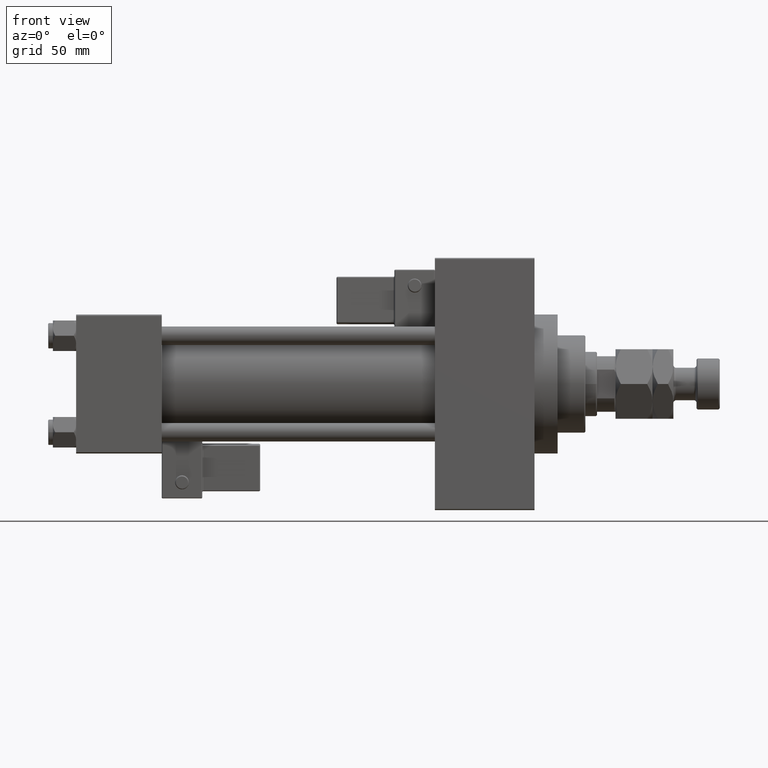
[diagram: clean part render]
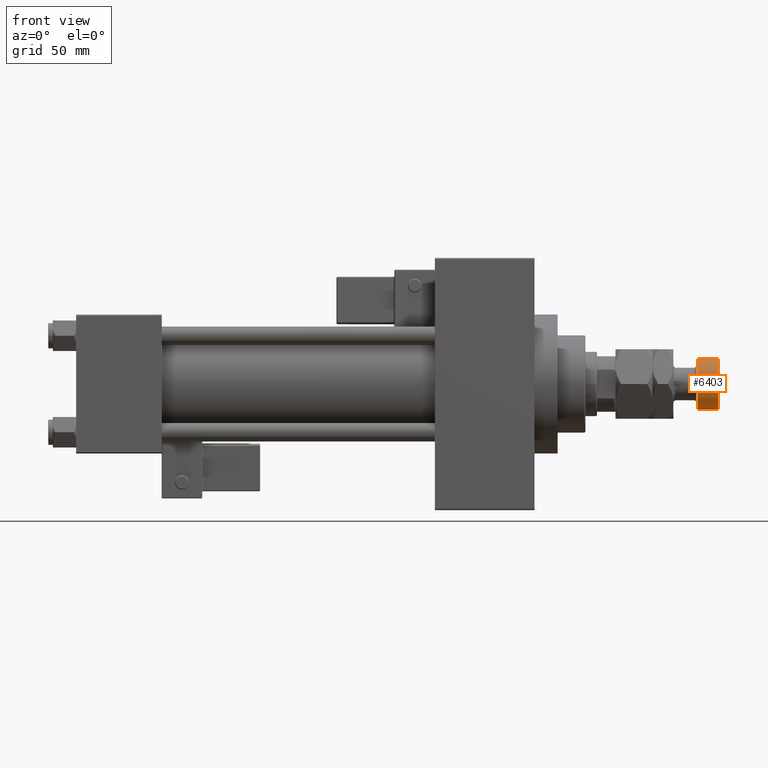
[diagram: same view with one face highlighted and labeled with its STEP entity id]
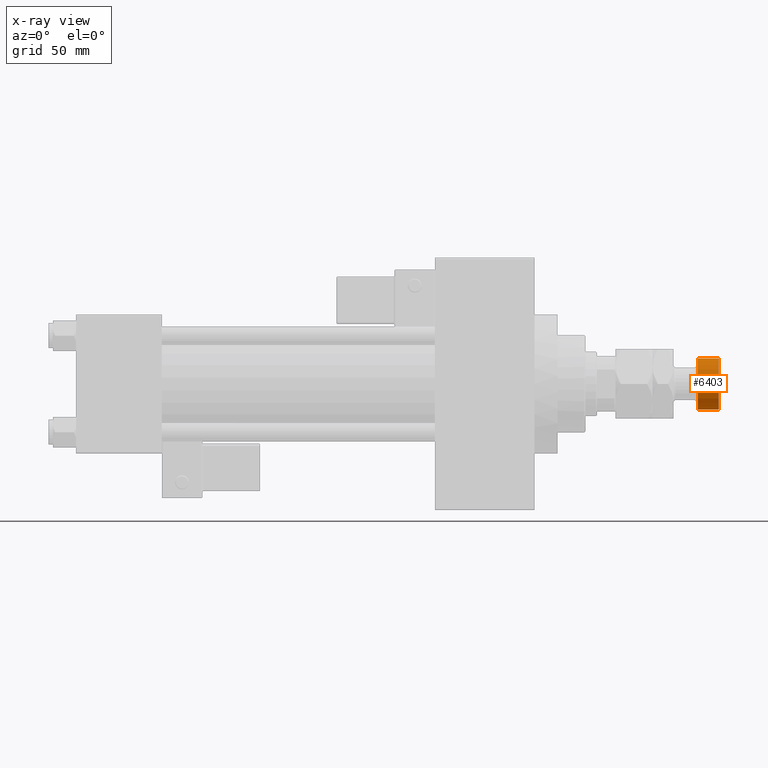
[diagram: x-ray of the same camera — body ghosted, the highlighted face saturated]
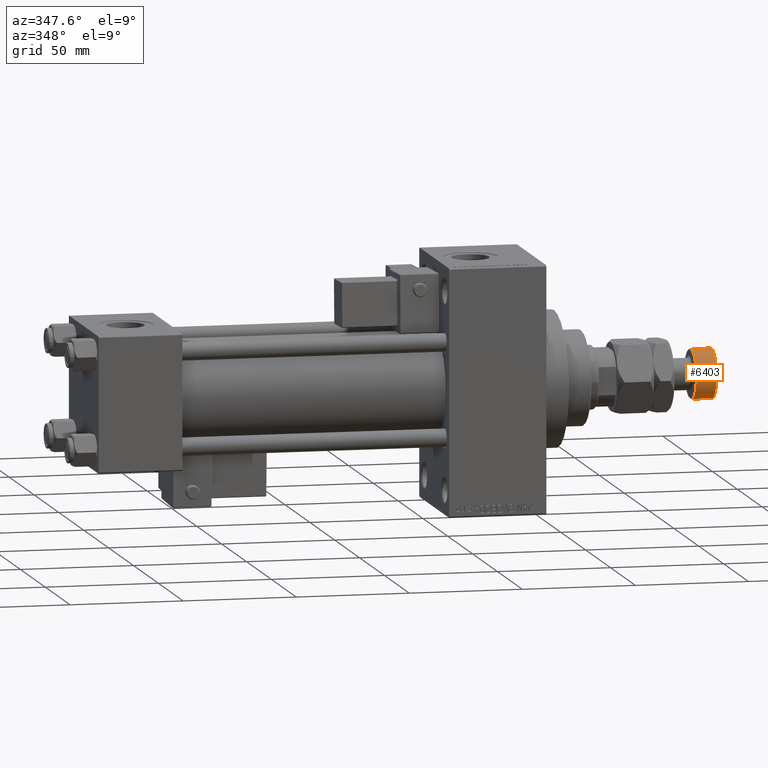
[diagram: same view with one face highlighted and labeled with its STEP entity id]
A machine part, front view. The second image highlights one B-rep face of the part: STEP entity #6403.
The next image is the same camera in x-ray: the body ghosted, the highlighted face saturated — about 0% of this face is hidden behind the body in this view.
A second angle (auxiliary view) of the same face is appended — the face is thin or edge-on in the first view.
In plain terms, the highlighted cylindrical surface (edge-blend (fillet) strip) has radius 11 mm, axis along (-1, -0, 0).
Its self-contained STEP definition (entity closure, byte-faithful):
#680 = VERTEX_POINT ( 'NONE', #12463 ) ;
#1321 = FACE_OUTER_BOUND ( 'NONE', #32879, .T. ) ;
#2620 = DIRECTION ( 'NONE',  ( 1.000000000000000000, 0.000000000000000000, 0.000000000000000000 ) ) ;
#3536 = VERTEX_POINT ( 'NONE', #37702 ) ;
#5222 = CARTESIAN_POINT ( 'NONE',  ( -11.00000000000000000, 0.000000000000000000, 45.00000000000000711 ) ) ;
#5226 = DIRECTION ( 'NONE',  ( -1.000000000000000000, 0.000000000000000000, 0.000000000000000000 ) ) ;
#6403 = ADVANCED_FACE ( 'NONE', ( #1321 ), #45513, .T. ) ;
#6970 = CARTESIAN_POINT ( 'NONE',  ( 11.00000000000000000, 1.347111479062088405E-15, 44.50000000000001421 ) ) ;
#7211 = VECTOR ( 'NONE', #37499, 1000.000000000000000 ) ;
#7728 = CIRCLE ( 'NONE', #30164, 11.00000000000000000 ) ;
#11197 = CARTESIAN_POINT ( 'NONE',  ( 0.000000000000000000, 0.000000000000000000, 35.50000000000001421 ) ) ;
#12463 = CARTESIAN_POINT ( 'NONE',  ( 11.00000000000000000, 1.347111479062088405E-15, 35.50000000000001421 ) ) ;
#14436 = ORIENTED_EDGE ( 'NONE', *, *, #47212, .T. ) ;
#15884 = ORIENTED_EDGE ( 'NONE', *, *, #31241, .F. ) ;
#17176 = DIRECTION ( 'NONE',  ( -0.000000000000000000, -0.000000000000000000, -1.000000000000000000 ) ) ;
#17673 = VERTEX_POINT ( 'NONE', #49807 ) ;
#20709 = CARTESIAN_POINT ( 'NONE',  ( 0.000000000000000000, 0.000000000000000000, 44.50000000000001421 ) ) ;
#22404 = DIRECTION ( 'NONE',  ( -0.000000000000000000, -0.000000000000000000, 1.000000000000000000 ) ) ;
#22686 = EDGE_CURVE ( 'NONE', #3536, #680, #33574, .T. ) ;
#24793 = LINE ( 'NONE', #36724, #7211 ) ;
#25105 = VERTEX_POINT ( 'NONE', #6970 ) ;
#29792 = AXIS2_PLACEMENT_3D ( 'NONE', #41085, #17176, #5226 ) ;
#30164 = AXIS2_PLACEMENT_3D ( 'NONE', #20709, #40717, #40457 ) ;
#31241 = EDGE_CURVE ( 'NONE', #25105, #680, #24793, .T. ) ;
#32879 = EDGE_LOOP ( 'NONE', ( #15884, #14436, #44202, #42300 ) ) ;
#33574 = CIRCLE ( 'NONE', #34401, 11.00000000000000000 ) ;
#34401 = AXIS2_PLACEMENT_3D ( 'NONE', #11197, #22404, #2620 ) ;
#36724 = CARTESIAN_POINT ( 'NONE',  ( 11.00000000000000000, 1.347111479062088405E-15, 45.00000000000000711 ) ) ;
#37499 = DIRECTION ( 'NONE',  ( -0.000000000000000000, -0.000000000000000000, -1.000000000000000000 ) ) ;
#37702 = CARTESIAN_POINT ( 'NONE',  ( -11.00000000000000000, 0.000000000000000000, 35.50000000000001421 ) ) ;
#40457 = DIRECTION ( 'NONE',  ( 1.000000000000000000, 0.000000000000000000, 0.000000000000000000 ) ) ;
#40717 = DIRECTION ( 'NONE',  ( 0.000000000000000000, 0.000000000000000000, -1.000000000000000000 ) ) ;
#41085 = CARTESIAN_POINT ( 'NONE',  ( 0.000000000000000000, 0.000000000000000000, 45.00000000000000711 ) ) ;
#42300 = ORIENTED_EDGE ( 'NONE', *, *, #22686, .T. ) ;
#43963 = LINE ( 'NONE', #5222, #50827 ) ;
#44202 = ORIENTED_EDGE ( 'NONE', *, *, #45712, .T. ) ;
#44218 = DIRECTION ( 'NONE',  ( -0.000000000000000000, -0.000000000000000000, -1.000000000000000000 ) ) ;
#45513 = CYLINDRICAL_SURFACE ( 'NONE', #29792, 11.00000000000000000 ) ;
#45712 = EDGE_CURVE ( 'NONE', #17673, #3536, #43963, .T. ) ;
#47212 = EDGE_CURVE ( 'NONE', #25105, #17673, #7728, .T. ) ;
#49807 = CARTESIAN_POINT ( 'NONE',  ( -11.00000000000000000, 0.000000000000000000, 44.50000000000001421 ) ) ;
#50827 = VECTOR ( 'NONE', #44218, 1000.000000000000000 ) ;